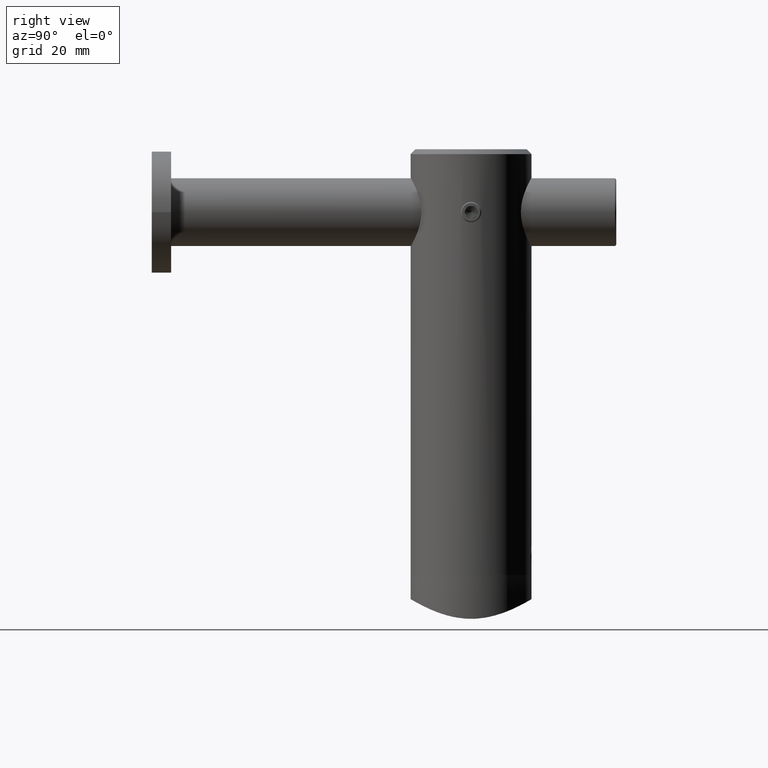
[diagram: clean part render]
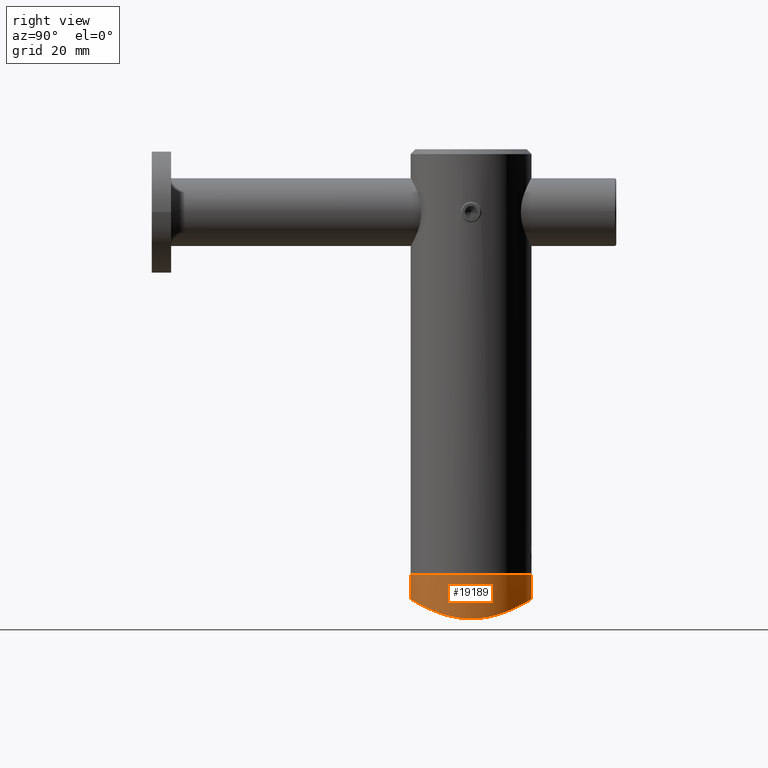
[diagram: same view with one face highlighted and labeled with its STEP entity id]
A machine part, right view. The second image highlights one B-rep face of the part: STEP entity #19189.
In plain terms, the highlighted cylindrical surface (partial cylindrical patch) has radius 12.5 mm, axis along (0, 0, -1).
Its self-contained STEP definition (entity closure, byte-faithful):
#396 = DIRECTION ( 'NONE',  ( -0.000000000000000000, 1.224646799147353207E-16, -1.000000000000000000 ) ) ;
#984 = DIRECTION ( 'NONE',  ( -0.000000000000000000, 1.224646799147353207E-16, -1.000000000000000000 ) ) ;
#1256 = CARTESIAN_POINT ( 'NONE',  ( 0.000000000000000000, -6.123233995736764310E-16, 4.999999999999998224 ) ) ;
#1374 = CARTESIAN_POINT ( 'NONE',  ( 12.32914928014637823, 2.100947460388598031, -3.953479877655619479 ) ) ;
#1577 = CARTESIAN_POINT ( 'NONE',  ( 12.47743914675955779, 0.8590761027902540370, -4.060680339665353245 ) ) ;
#2782 = B_SPLINE_CURVE_WITH_KNOTS ( 'NONE', 3,
 ( #10510, #17928, #16181, #13282, #5753, #10495, #4308, #19239, #11862, #4505, #4369, #8934, #8860, #3003, #16235, #11802, #13416, #4435, #10429, #5807, #10307, #10373, #2947, #1374, #2807, #1577, #17841, #2880, #13214, #14877, #14690, #19114, #6003, #7314, #9001, #16113, #12000, #7440, #16372, #17653, #13349, #8795, #17586, #10231, #17724, #5877, #3069, #14752, #7379, #7242, #11930, #14813, #5943, #7508 ),
 .UNSPECIFIED., .F., .F.,
 ( 4, 2, 2, 2, 2, 2, 2, 2, 2, 2, 2, 2, 2, 2, 2, 2, 2, 2, 2, 2, 2, 2, 2, 2, 2, 2, 4 ),
 ( 0.04004282410750471810, 0.04254226347006971609, 0.04379198315135222203, 0.04504170283263472102, 0.04754114219519971901, 0.04879086187648222495, 0.05004058155776472394, 0.05129030123904722294, 0.05254002092032972887, 0.05503946028289473380, 0.05628917996417723280, 0.05753889964545973179, 0.05878861932674223079, 0.06003833900802472978, 0.06253777837058974165, 0.06378749805187224065, 0.06503721773315473964, 0.06628693741443722476, 0.06753665709571973763, 0.07003609645828472174, 0.07128581613956722074, 0.07253553582084971973, 0.07503497518341471773, 0.07628469486469721672, 0.07753441454597971572, 0.07878413422726221471, 0.08003385390854471371 ),
 .UNSPECIFIED. ) ;
#2807 = CARTESIAN_POINT ( 'NONE',  ( 12.39224670344945345, 1.690183733302201174, -3.998982945155021174 ) ) ;
#2880 = CARTESIAN_POINT ( 'NONE',  ( 12.50092163456458572, -0.8325225752573196525, -4.077880983653365377 ) ) ;
#2947 = CARTESIAN_POINT ( 'NONE',  ( 12.16283172011047320, 2.913318855141288299, -3.835786719495810182 ) ) ;
#3003 = CARTESIAN_POINT ( 'NONE',  ( 9.131153934576976994, 8.545773481795480464, -2.064755425040019521 ) ) ;
#3069 = CARTESIAN_POINT ( 'NONE',  ( 4.105579123586817758, -11.81380058909568476, -0.3974590877189465021 ) ) ;
#3075 = EDGE_CURVE ( 'NONE', #16817, #5175, #6682, .T. ) ;
#4308 = CARTESIAN_POINT ( 'NONE',  ( 4.484770986791653868, 11.67494392594038644, -0.4761762759779024634 ) ) ;
#4369 = CARTESIAN_POINT ( 'NONE',  ( 7.658649217430773426, 9.887116871149988384, -1.428917258316854344 ) ) ;
#4371 = DIRECTION ( 'NONE',  ( -0.000000000000000000, 1.224646799147353207E-16, -1.000000000000000000 ) ) ;
#4435 = CARTESIAN_POINT ( 'NONE',  ( 10.81845405890102718, 6.312809980033599722, -2.960938029448109354 ) ) ;
#4505 = CARTESIAN_POINT ( 'NONE',  ( 7.335528771759538991, 10.12938846727852393, -1.306364138595596858 ) ) ;
#5059 = CARTESIAN_POINT ( 'NONE',  ( 0.000000000000000000, 0.000000000000000000, 0.000000000000000000 ) ) ;
#5175 = VERTEX_POINT ( 'NONE', #16890 ) ;
#5538 = CARTESIAN_POINT ( 'NONE',  ( 0.000000000000000000, 12.50000000000000000, 1.530808498934191521E-15 ) ) ;
#5753 = CARTESIAN_POINT ( 'NONE',  ( 3.299544761782136071, 12.06386656912338573, -0.2544362983334328976 ) ) ;
#5807 = CARTESIAN_POINT ( 'NONE',  ( 11.67210911516328586, 4.491739155361240243, -3.501495300727552884 ) ) ;
#5877 = CARTESIAN_POINT ( 'NONE',  ( 4.497906677117311069, -11.66996163373024764, -0.4789896541132562247 ) ) ;
#5943 = CARTESIAN_POINT ( 'NONE',  ( 0.4231827426424521477, -12.50000000000000178, 3.049318610115447941E-17 ) ) ;
#6003 = CARTESIAN_POINT ( 'NONE',  ( 11.68253881569350128, -4.464708600178402875, -3.508378586956061973 ) ) ;
#6210 = EDGE_CURVE ( 'NONE', #13731, #13457, #16074, .T. ) ;
#6682 = LINE ( 'NONE', #10345, #14115 ) ;
#6786 = CARTESIAN_POINT ( 'NONE',  ( 0.000000000000000000, 12.50000000000000000, -5.261240927112904875E-16 ) ) ;
#7242 = CARTESIAN_POINT ( 'NONE',  ( 2.099149467039291839, -12.32948117877257133, -0.1002009966568829374 ) ) ;
#7314 = CARTESIAN_POINT ( 'NONE',  ( 11.36768113948518533, -5.214514510065638042, -3.304441698743988187 ) ) ;
#7379 = CARTESIAN_POINT ( 'NONE',  ( 2.913028033381143356, -12.16292737376220501, -0.1970903410221248320 ) ) ;
#7440 = CARTESIAN_POINT ( 'NONE',  ( 9.926636468171464500, -7.639131853456513355, -2.460587857928715039 ) ) ;
#7508 = CARTESIAN_POINT ( 'NONE',  ( 1.530808498934191521E-15, -12.50000000000000000, 0.000000000000000000 ) ) ;
#7859 = CARTESIAN_POINT ( 'NONE',  ( 1.530808498934191521E-15, -12.50000000000000000, 4.999999999999996447 ) ) ;
#8127 = ORIENTED_EDGE ( 'NONE', *, *, #11549, .T. ) ;
#8317 = EDGE_CURVE ( 'NONE', #13457, #5175, #2782, .T. ) ;
#8795 = CARTESIAN_POINT ( 'NONE',  ( 7.658205628427102063, -9.887548328762056471, -1.428715490893919027 ) ) ;
#8860 = CARTESIAN_POINT ( 'NONE',  ( 8.569357823279592168, 9.109024265841888734, -1.806659297143442533 ) ) ;
#8934 = CARTESIAN_POINT ( 'NONE',  ( 8.275085783090288416, 9.377256695960113575, -1.678894091352529871 ) ) ;
#9001 = CARTESIAN_POINT ( 'NONE',  ( 11.19286692429163033, -5.579736034962373026, -3.194160573709634576 ) ) ;
#9277 = AXIS2_PLACEMENT_3D ( 'NONE', #5059, #396, #9437 ) ;
#9281 = CIRCLE ( 'NONE', #16814, 12.50000000000000000 ) ;
#9409 = ORIENTED_EDGE ( 'NONE', *, *, #6210, .F. ) ;
#9437 = DIRECTION ( 'NONE',  ( 0.000000000000000000, 1.000000000000000000, 1.224646799147353207E-16 ) ) ;
#10231 = CARTESIAN_POINT ( 'NONE',  ( 6.341786811947650371, -10.80157710299960350, -0.9585494183447895722 ) ) ;
#10307 = CARTESIAN_POINT ( 'NONE',  ( 11.81299108572394552, 4.107946293886027611, -3.595584469514716996 ) ) ;
#10345 = CARTESIAN_POINT ( 'NONE',  ( 1.530808498934191521E-15, -12.50000000000000000, -1.530808498934191521E-15 ) ) ;
#10373 = CARTESIAN_POINT ( 'NONE',  ( 12.05928981790097509, 3.315947863389200112, -3.763379523277600835 ) ) ;
#10429 = CARTESIAN_POINT ( 'NONE',  ( 11.19951824176104260, 5.610365273027625221, -3.195789650799768289 ) ) ;
#10495 = CARTESIAN_POINT ( 'NONE',  ( 4.096177303198103026, 11.81715717646936170, -0.3955541790620945020 ) ) ;
#10510 = CARTESIAN_POINT ( 'NONE',  ( 0.000000000000000000, 12.50000000000000000, -5.261240927112904875E-16 ) ) ;
#11549 = EDGE_CURVE ( 'NONE', #13731, #16817, #9281, .T. ) ;
#11802 = CARTESIAN_POINT ( 'NONE',  ( 9.907181247822171244, 7.632686742754889231, -2.455152407378314194 ) ) ;
#11862 = CARTESIAN_POINT ( 'NONE',  ( 6.327442067174433582, 10.81070993117193701, -0.9537559661941126254 ) ) ;
#11925 = VECTOR ( 'NONE', #984, 1000.000000000000000 ) ;
#11930 = CARTESIAN_POINT ( 'NONE',  ( 1.686513140915326892, -12.39284970661473828, -0.06302927873795291513 ) ) ;
#12000 = CARTESIAN_POINT ( 'NONE',  ( 10.59835307524082815, -6.639730706434157526, -2.837515640770630121 ) ) ;
#13214 = CARTESIAN_POINT ( 'NONE',  ( 12.41682490114521542, -1.662227575578483441, -4.015612738538496096 ) ) ;
#13282 = CARTESIAN_POINT ( 'NONE',  ( 2.897069353050997886, 12.16672379034243612, -0.1948899815732027530 ) ) ;
#13349 = CARTESIAN_POINT ( 'NONE',  ( 8.277917003856295253, -9.374850157636904768, -1.680064173656782511 ) ) ;
#13416 = CARTESIAN_POINT ( 'NONE',  ( 10.14840342747128865, 7.308901243718507246, -2.585073453788892195 ) ) ;
#13457 = VERTEX_POINT ( 'NONE', #6786 ) ;
#13731 = VERTEX_POINT ( 'NONE', #18100 ) ;
#14115 = VECTOR ( 'NONE', #16341, 1000.000000000000000 ) ;
#14690 = CARTESIAN_POINT ( 'NONE',  ( 12.06641939663192176, -3.289765162964158662, -3.768324835594353939 ) ) ;
#14752 = CARTESIAN_POINT ( 'NONE',  ( 3.314268895872203302, -12.05973822206781776, -0.2568123239795945811 ) ) ;
#14813 = CARTESIAN_POINT ( 'NONE',  ( 0.8493063021244323663, -12.47821017736088756, -0.01286860730927485812 ) ) ;
#14877 = CARTESIAN_POINT ( 'NONE',  ( 12.16984790407604322, -2.883996753870297969, -3.840709158031506476 ) ) ;
#15285 = FACE_OUTER_BOUND ( 'NONE', #16241, .T. ) ;
#16074 = LINE ( 'NONE', #5538, #11925 ) ;
#16113 = CARTESIAN_POINT ( 'NONE',  ( 10.80857782698150693, -6.291928922265640267, -2.960889035143796644 ) ) ;
#16118 = DIRECTION ( 'NONE',  ( 0.000000000000000000, 1.000000000000000000, 1.387778780781445676E-16 ) ) ;
#16181 = CARTESIAN_POINT ( 'NONE',  ( 1.677193835120719623, 12.41473863385456333, -0.05058743771265820227 ) ) ;
#16235 = CARTESIAN_POINT ( 'NONE',  ( 9.398677270982503273, 8.250758313400195831, -2.195094919896832586 ) ) ;
#16241 = EDGE_LOOP ( 'NONE', ( #8127, #19187, #18961, #9409 ) ) ;
#16341 = DIRECTION ( 'NONE',  ( -0.000000000000000000, 1.224646799147353207E-16, -1.000000000000000000 ) ) ;
#16372 = CARTESIAN_POINT ( 'NONE',  ( 9.421823641441763542, -8.253338742496664437, -2.198572594055990148 ) ) ;
#16675 = CYLINDRICAL_SURFACE ( 'NONE', #9277, 12.50000000000000000 ) ;
#16814 = AXIS2_PLACEMENT_3D ( 'NONE', #1256, #4371, #16118 ) ;
#16817 = VERTEX_POINT ( 'NONE', #7859 ) ;
#16890 = CARTESIAN_POINT ( 'NONE',  ( 1.530808498934191521E-15, -12.50000000000000000, 0.000000000000000000 ) ) ;
#17586 = CARTESIAN_POINT ( 'NONE',  ( 7.337423735946516423, -10.12782281091194569, -1.307140519180895577 ) ) ;
#17653 = CARTESIAN_POINT ( 'NONE',  ( 8.576233453199916923, -9.102626546136086461, -1.809681003019513623 ) ) ;
#17724 = CARTESIAN_POINT ( 'NONE',  ( 5.634036949567876817, -11.18857916297122657, -0.7475340222135680168 ) ) ;
#17841 = CARTESIAN_POINT ( 'NONE',  ( 12.49952788043968255, 0.4368485482069777714, -4.076863514619261331 ) ) ;
#17928 = CARTESIAN_POINT ( 'NONE',  ( 0.8474616539393307058, 12.50000000000000000, -5.374424050328533679E-16 ) ) ;
#18100 = CARTESIAN_POINT ( 'NONE',  ( 0.000000000000000000, 12.50000000000000000, 5.000000000000000000 ) ) ;
#18961 = ORIENTED_EDGE ( 'NONE', *, *, #8317, .F. ) ;
#19114 = CARTESIAN_POINT ( 'NONE',  ( 11.82258794161552373, -4.080128214362262362, -3.602040162122799316 ) ) ;
#19187 = ORIENTED_EDGE ( 'NONE', *, *, #3075, .T. ) ;
#19189 = ADVANCED_FACE ( 'NONE', ( #15285 ), #16675, .T. ) ;
#19239 = CARTESIAN_POINT ( 'NONE',  ( 5.615852831644743581, 11.19741679516262600, -0.7426697937745310174 ) ) ;